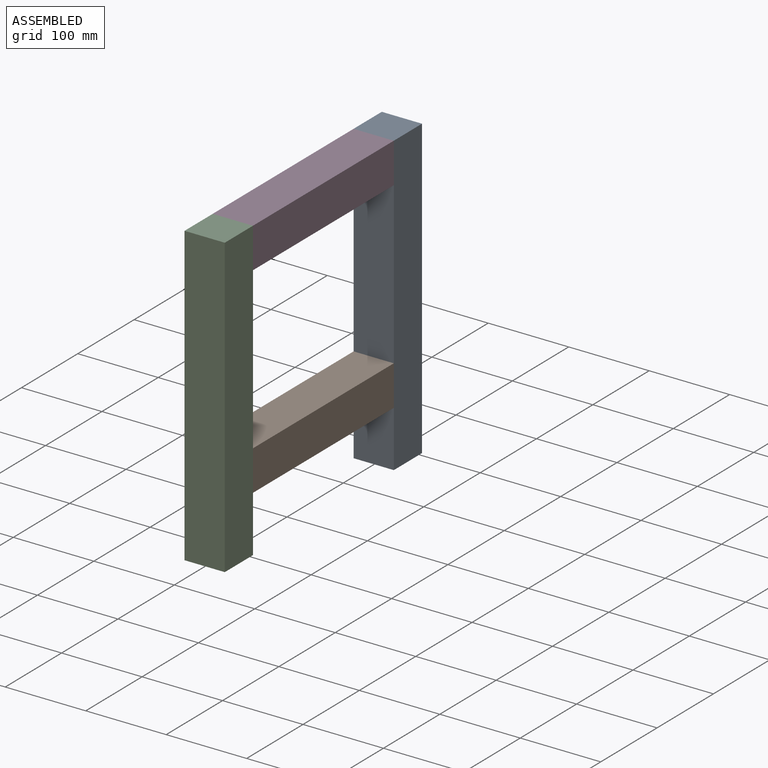
[diagram: assembled view]
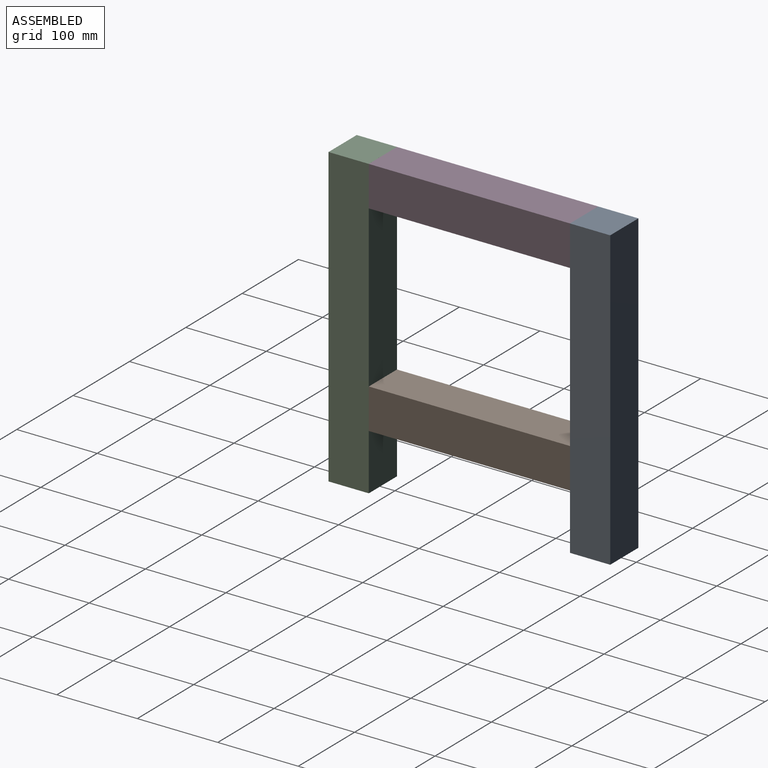
[diagram: assembled view, second angle]
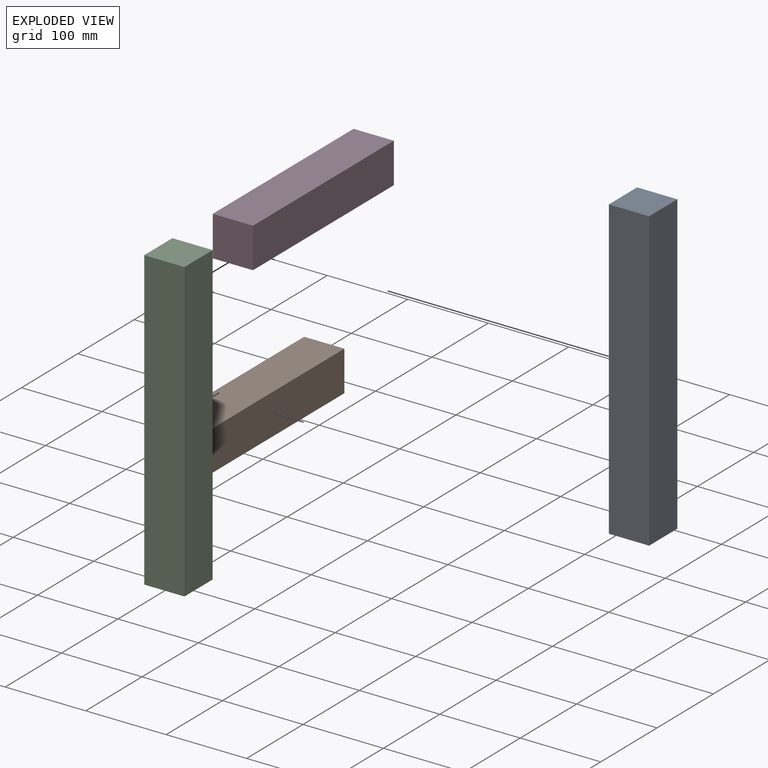
[diagram: exploded view]
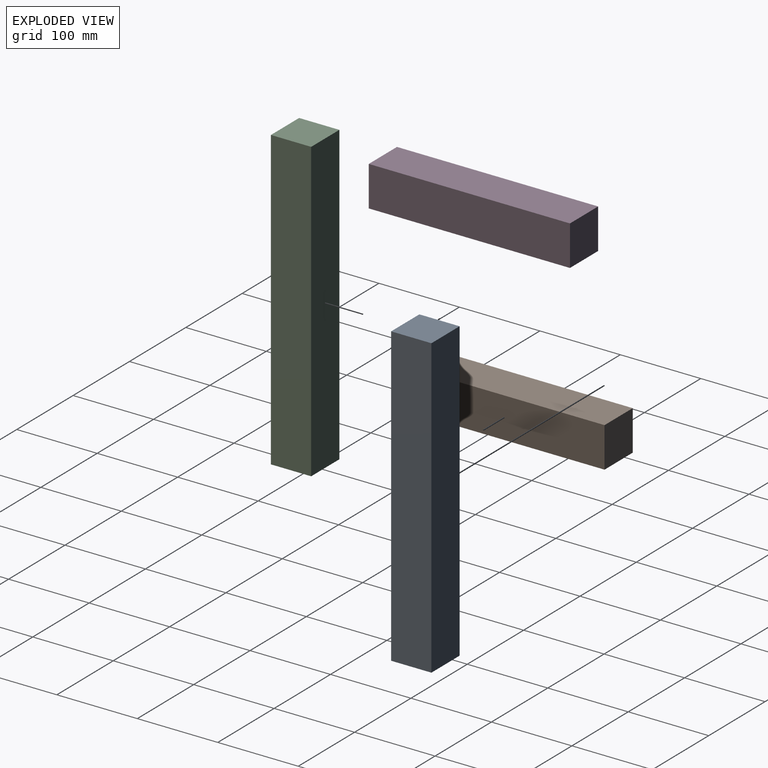
[diagram: exploded view, second angle]
ASSEMBLY  parts=4 mates=3
PART A: 6 faces, bbox 50x50x370 mm
  f0: plane 50x50mm, normal (0,0,1), area 2500mm2, adj f1,f3,f4,f5
  f1: plane 370x50mm, normal (-1,0,0), area 18500mm2, adj f0,f2,f4,f5
  f2: plane 50x50mm, normal (0,0,-1), area 2500mm2, adj f1,f3,f4,f5
  f3: plane 370x50mm, normal (1,0,0), area 18500mm2, adj f0,f2,f4,f5
  f4: plane 370x50mm, normal (0,-1,0), area 18500mm2, adj f0,f1,f2,f3
  f5: plane 370x50mm, normal (0,1,0), area 18500mm2, adj f0,f1,f2,f3
PART B: 6 faces, bbox 50x250x50 mm
  f0: plane 50x50mm, normal (0,1,0), area 2500mm2, adj f1,f3,f4,f5
  f1: plane 250x50mm, normal (-1,0,0), area 12500mm2, adj f0,f2,f4,f5
  f2: plane 50x50mm, normal (0,-1,0), area 2500mm2, adj f1,f3,f4,f5
  f3: plane 250x50mm, normal (1,0,0), area 12500mm2, adj f0,f2,f4,f5
  f4: plane 250x50mm, normal (0,0,1), area 12500mm2, adj f0,f1,f2,f3
  f5: plane 250x50mm, normal (0,0,-1), area 12500mm2, adj f0,f1,f2,f3
PART C: same geometry as A
PART D: same geometry as B
PLACE A t=(-146.37,291.29,-4.15)mm
PLACE B t=(-155.17,32.42,24.62)mm
PLACE C t=(-146.37,-8.71,-4.15)mm
PLACE D t=(-155.17,32.42,274.62)mm
MATE planar D.f3 <-> C.f3  axis (1,0,0) through (-166.1,116.29,299.62)mm
MATE planar D.f4 <-> C.f0  axis (0,0,1) through (-191.1,116.29,324.62)mm
MATE planar D.f2 <-> C.f5  axis (0,-1,0) through (-191.1,-8.71,299.62)mm
